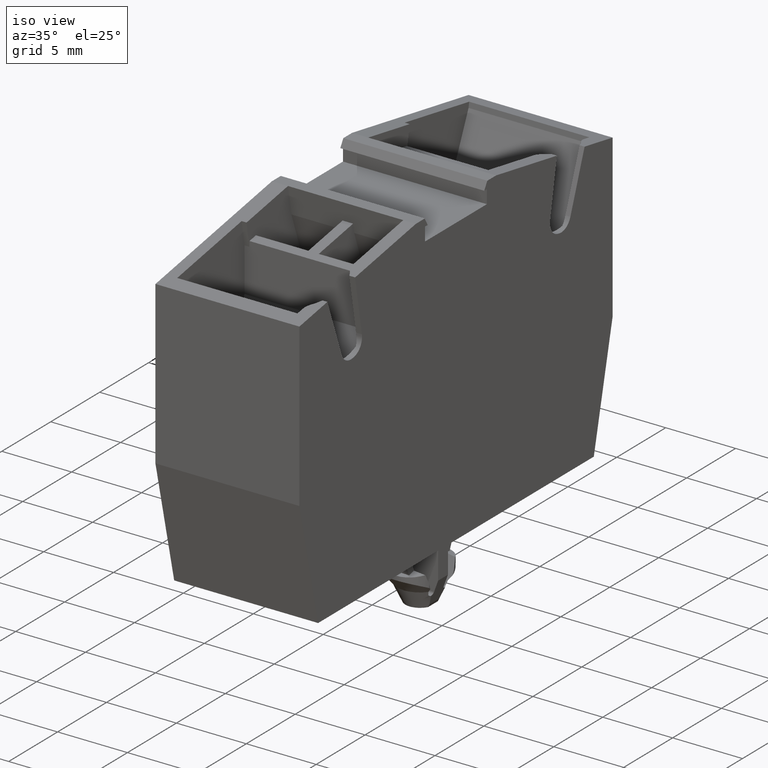
[diagram: clean part render]
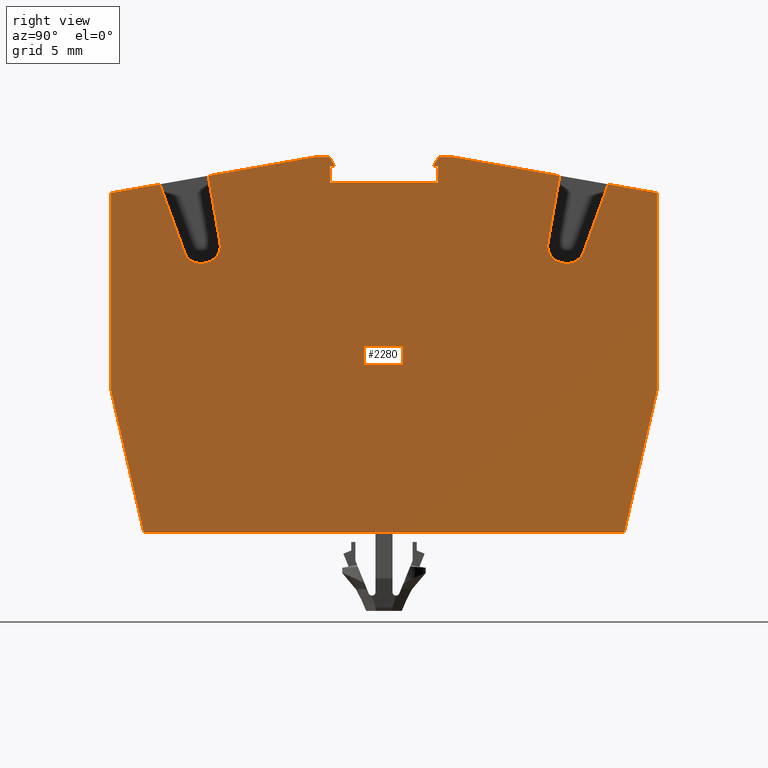
[diagram: tour spotlight — one face highlighted and labeled with its STEP entity id]
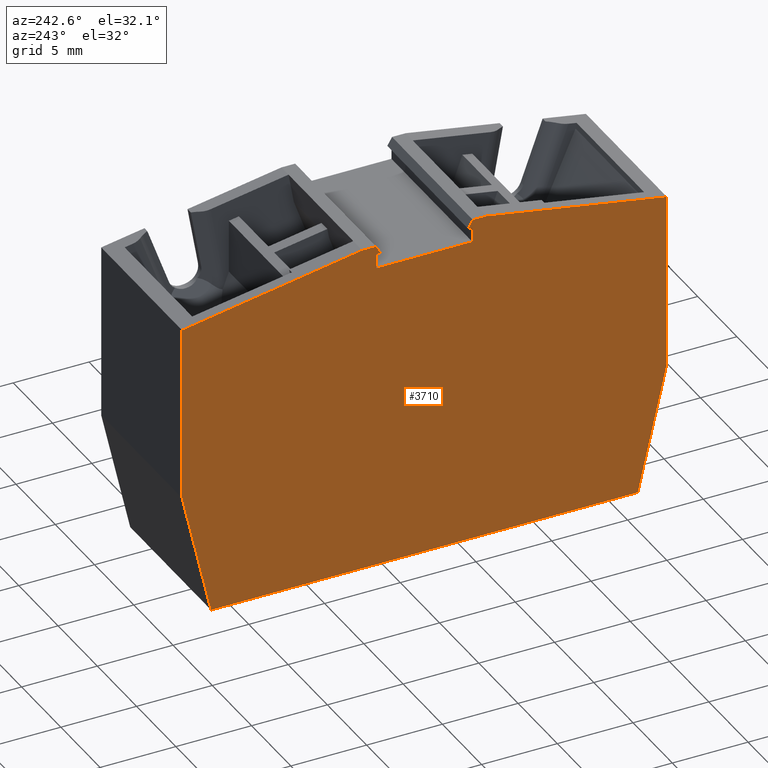
[diagram: tour spotlight — one face highlighted and labeled with its STEP entity id]
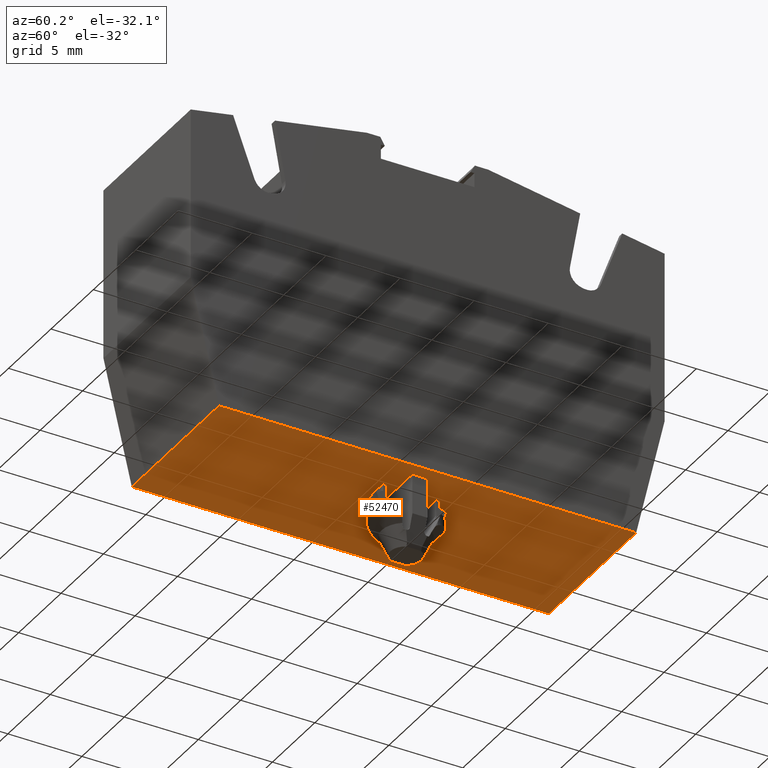
[diagram: tour spotlight — one face highlighted and labeled with its STEP entity id]
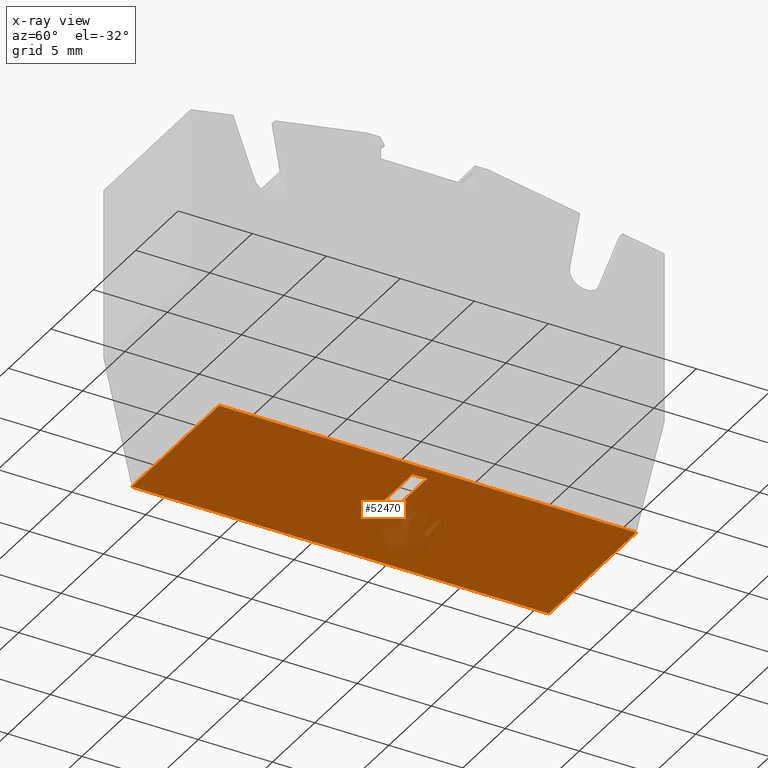
[diagram: x-ray of the same camera — body ghosted, this tour face saturated]
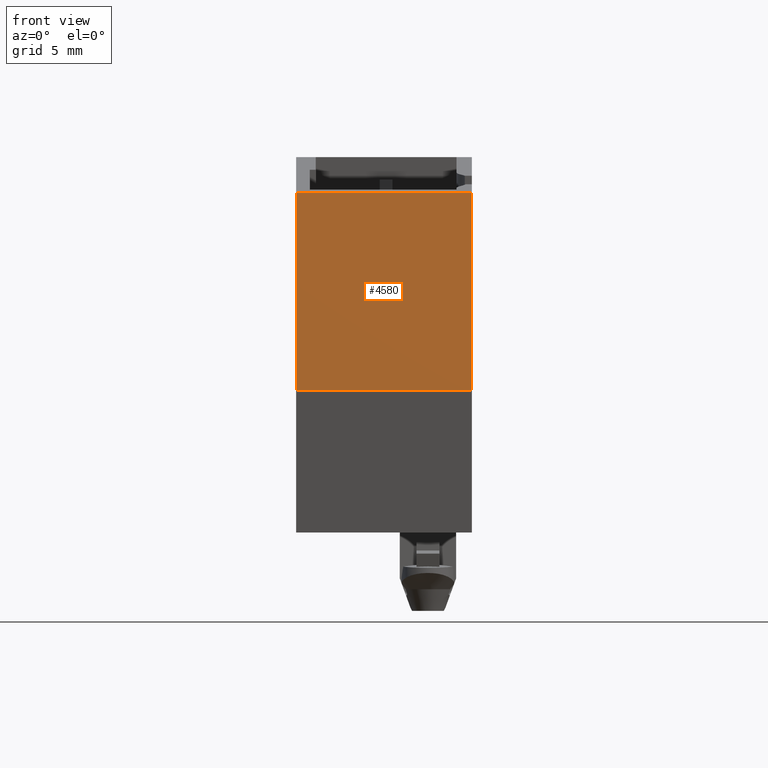
[diagram: tour spotlight — one face highlighted and labeled with its STEP entity id]
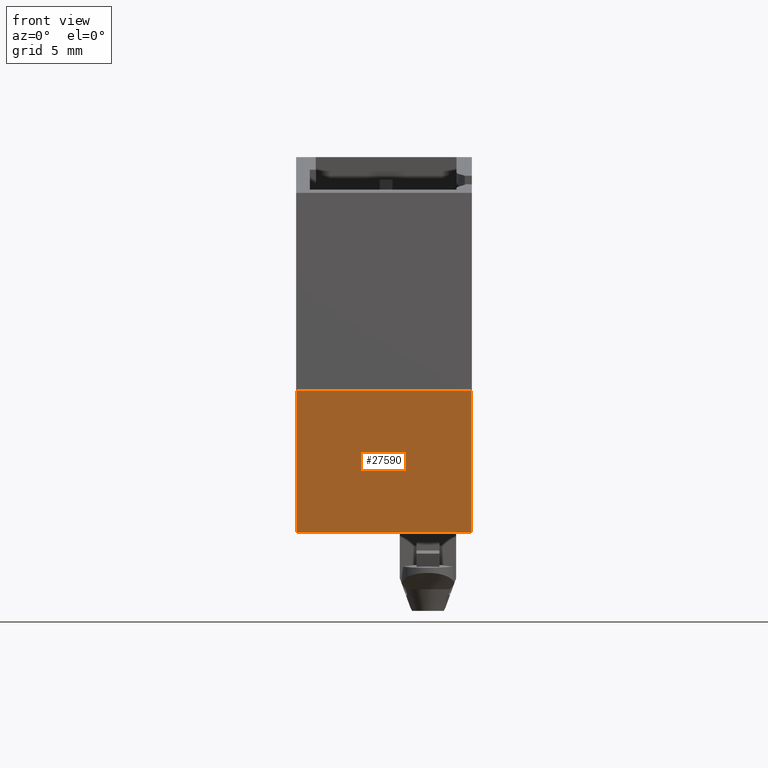
[diagram: tour spotlight — one face highlighted and labeled with its STEP entity id]
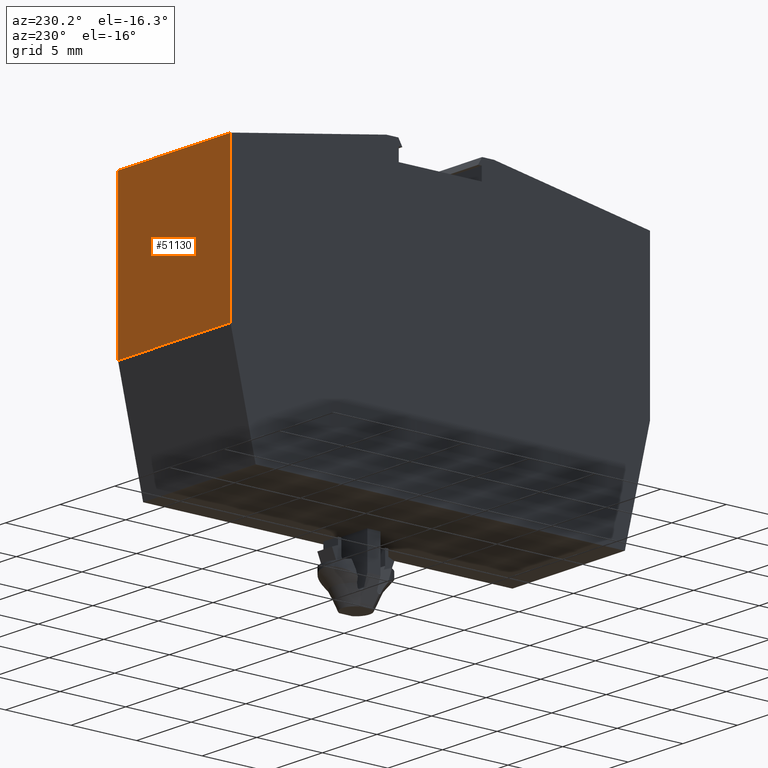
[diagram: tour spotlight — one face highlighted and labeled with its STEP entity id]
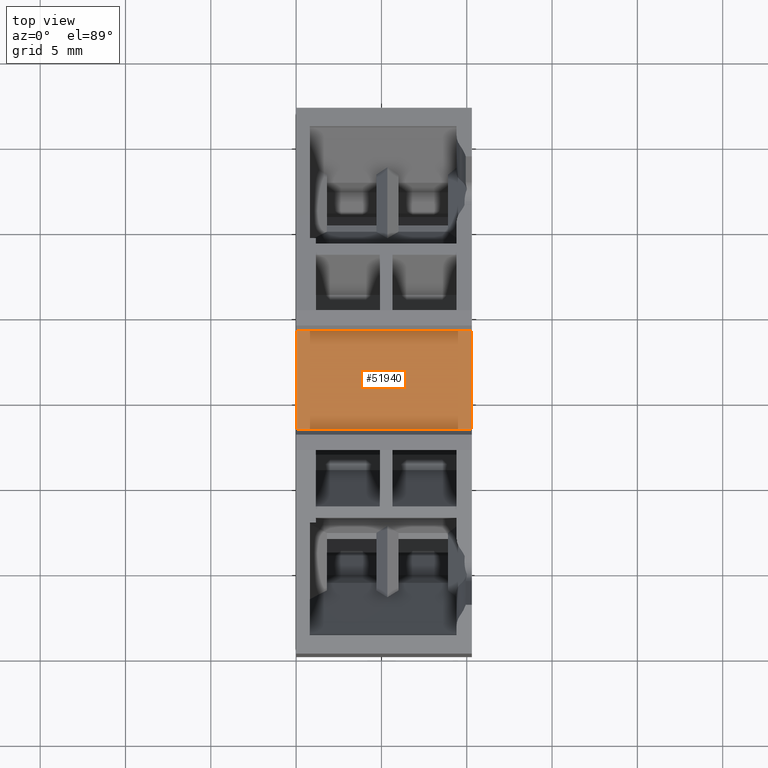
[diagram: tour spotlight — one face highlighted and labeled with its STEP entity id]
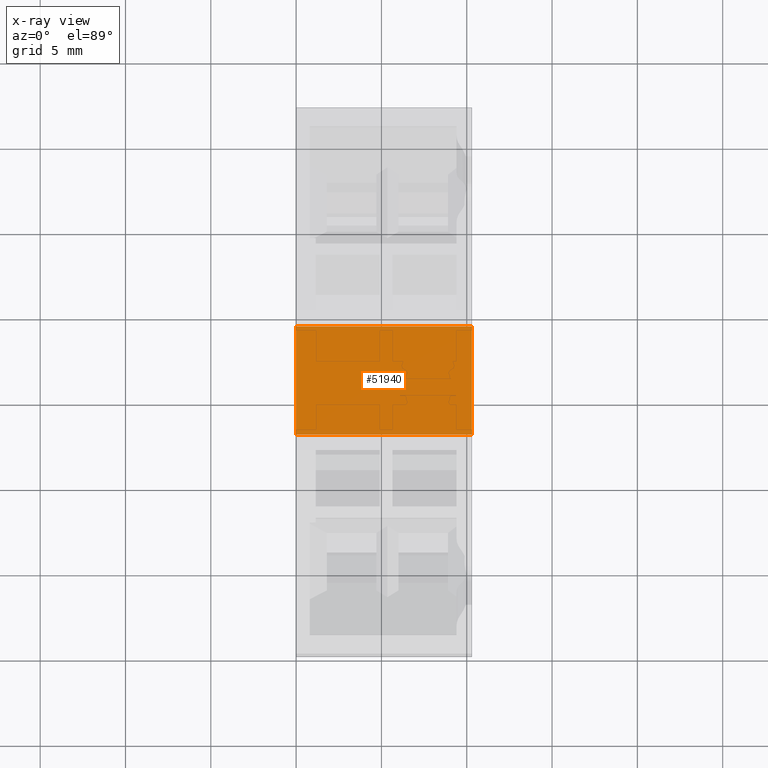
[diagram: x-ray of the same camera — body ghosted, this tour face saturated]
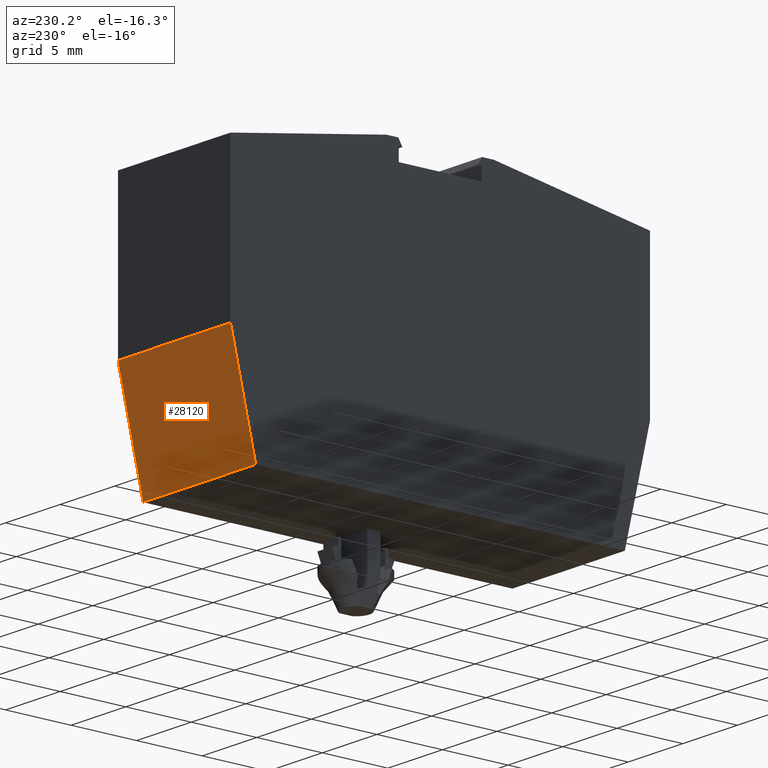
[diagram: tour spotlight — one face highlighted and labeled with its STEP entity id]
A machine part: a face-by-face anatomy tour. The part has 181 B-rep faces; the first image is the clean iso view, then the 8 largest visible faces are spotlighted one at a time (largest first), each with its STEP entity span.

Face 1 — right view, entity #2280. In plain terms, the highlighted planar face has unit normal (1, 0, 0).
Definition (entity closure, byte-faithful):
#10=CARTESIAN_POINT('',(10.2480527911617,122.760085154839,55.05));
#20=DIRECTION('',(-2.30345960980398E-64,1.26862884984352E-65,-1.));
#30=DIRECTION('',(0.258819045102521,-0.965925826289068,
-7.18719353645615E-65));
#40=AXIS2_PLACEMENT_3D('',#10,#20,#30);
#50=PLANE('',#40);
#60=CARTESIAN_POINT('',(30.7687890493707,146.615415927268,
55.0499999999999));
#70=DIRECTION('',(-0.707106781192048,-0.707106781181047,0.));
#80=VECTOR('',#70,1.);
#90=LINE('',#60,#80);
#100=CARTESIAN_POINT('',(-7.81307301441078,108.033553864087,
55.0499999999999));
#110=VERTEX_POINT('',#100);
#120=CARTESIAN_POINT('',(-8.24581620230512,107.600810676199,
55.0499999999999));
#130=VERTEX_POINT('',#120);
#140=EDGE_CURVE('',#110,#130,#90,.T.);
#150=ORIENTED_EDGE('',*,*,#140,.F.);
#160=CARTESIAN_POINT('',(-18.4441107971479,145.661364254707,
55.0499999999999));
#170=DIRECTION('',(0.258819045102521,-0.965925826289069,
-1.43743870729123E-64));
#180=VECTOR('',#170,1.);
#190=LINE('',#160,#180);
#200=CARTESIAN_POINT('',(-8.01189244908608,106.727795344088,
55.0499999999999));
#210=VERTEX_POINT('',#200);
#220=EDGE_CURVE('',#130,#210,#190,.T.);
#230=ORIENTED_EDGE('',*,*,#220,.F.);
#240=CARTESIAN_POINT('',(6.44969629117272,75.7148182090402,
55.0499999999999));
#250=DIRECTION('',(0.422618261740699,-0.90630778703665,0.));
#260=VECTOR('',#250,1.);
#270=LINE('',#240,#260);
#280=CARTESIAN_POINT('',(-5.34939740012057,101.018056285759,
55.0499999999999));
#290=VERTEX_POINT('',#280);
#300=EDGE_CURVE('',#210,#290,#270,.T.);
#310=ORIENTED_EDGE('',*,*,#300,.F.);
#320=CARTESIAN_POINT('',(30.7687890493707,117.860243225863,
55.0499999999999));
#330=DIRECTION('',(0.906307787036306,0.422618261741438,0.));
#340=VECTOR('',#330,1.);
#350=LINE('',#320,#340);
#360=CARTESIAN_POINT('',(-1.72416625197246,102.708529332726,
55.0499999999999));
#370=VERTEX_POINT('',#360);
#380=EDGE_CURVE('',#290,#370,#350,.T.);
#390=ORIENTED_EDGE('',*,*,#380,.F.);
#400=CARTESIAN_POINT('',(-1.30154799023101,101.80222154569,
55.0499999999999));
#410=DIRECTION('',(4.14455412124588E-15,-8.88802499542178E-15,1.));
#420=DIRECTION('',(-0.866025403784085,-0.500000000000613,
-8.54723341359381E-16));
#430=AXIS2_PLACEMENT_3D('',#400,#410,#420);
#440=CIRCLE('',#430,1.);
#450=CARTESIAN_POINT('',(-0.395240203169809,102.224839807378,
55.0499999999999));
#460=VERTEX_POINT('',#450);
#470=EDGE_CURVE('',#460,#370,#440,.T.);
#480=ORIENTED_EDGE('',*,*,#470,.T.);
#490=CARTESIAN_POINT('',(11.9665858860122,75.7148182090402,
55.0499999999999));
#500=DIRECTION('',(-0.422618261741341,0.906307787036351,0.));
#510=VECTOR('',#500,1.);
#520=LINE('',#490,#510);
#530=CARTESIAN_POINT('',(-0.327240769009244,102.07901455023,
55.0499999999999));
#540=VERTEX_POINT('',#530);
#550=EDGE_CURVE('',#540,#460,#520,.T.);
#560=ORIENTED_EDGE('',*,*,#550,.T.);
#570=CARTESIAN_POINT('',(-1.23354855604559,101.656396288489,
55.0499999999999));
#580=DIRECTION('',(4.14455412124588E-15,-8.88802499542178E-15,1.));
#590=DIRECTION('',(-0.866025403784085,-0.500000000000613,
-8.54723341359381E-16));
#600=AXIS2_PLACEMENT_3D('',#570,#580,#590);
#610=CIRCLE('',#600,1.);
#620=CARTESIAN_POINT('',(-0.659972119694014,100.8372442442,
55.0499999999999));
#630=VERTEX_POINT('',#620);
#640=EDGE_CURVE('',#630,#540,#610,.T.);
#650=ORIENTED_EDGE('',*,*,#640,.T.);
#660=CARTESIAN_POINT('',(30.7687890493707,122.843899731405,
55.0499999999999));
#670=DIRECTION('',(0.819152044288586,0.573576436351626,0.));
#680=VECTOR('',#670,1.);
#690=LINE('',#660,#680);
#700=CARTESIAN_POINT('',(-4.1315658662146,98.4064081332833,
55.0499999999999));
#710=VERTEX_POINT('',#700);
#720=EDGE_CURVE('',#710,#630,#690,.T.);
#730=ORIENTED_EDGE('',*,*,#720,.T.);
#740=CARTESIAN_POINT('',(-2.90515227636546,95.7763557024448,
55.0499999999999));
#750=VERTEX_POINT('',#740);
#760=EDGE_CURVE('',#710,#750,#270,.T.);
#770=ORIENTED_EDGE('',*,*,#760,.F.);
#780=CARTESIAN_POINT('',(39.0509984926515,107.018472418521,
55.0499999999999));
#790=DIRECTION('',(0.965925826289069,0.258819045102521,
-1.68675167091688E-80));
#800=VECTOR('',#790,1.);
#810=LINE('',#780,#800);
#820=CARTESIAN_POINT('',(8.3012380077943,98.7790989291533,
55.0499999999999));
#830=VERTEX_POINT('',#820);
#840=EDGE_CURVE('',#750,#830,#810,.T.);
#850=ORIENTED_EDGE('',*,*,#840,.F.);
#860=CARTESIAN_POINT('',(30.7687890493707,110.725307724295,
55.0499999999999));
#870=DIRECTION('',(-0.882947592858927,-0.469471562785891,0.));
#880=VECTOR('',#870,1.);
#890=LINE('',#860,#880);
#900=CARTESIAN_POINT('',(15.8224717623891,102.778209854199,55.05));
#910=VERTEX_POINT('',#900);
#920=EDGE_CURVE('',#910,#830,#890,.T.);
#930=ORIENTED_EDGE('',*,*,#920,.T.);
#940=CARTESIAN_POINT('',(23.0740856981567,75.7148182090402,55.05));
#950=DIRECTION('',(0.25881904510252,-0.965925826289069,
-1.55517576410032E-28));
#960=VECTOR('',#950,1.);
#970=LINE('',#940,#960);
#980=CARTESIAN_POINT('',(8.53216352631745,129.986010594057,55.05));
#990=VERTEX_POINT('',#980);
#1000=EDGE_CURVE('',#990,#910,#970,.T.);
#1010=ORIENTED_EDGE('',*,*,#1000,.T.);
#1020=CARTESIAN_POINT('',(30.7687890493707,130.762530668222,
55.0499999999999));
#1030=DIRECTION('',(0.999390827019096,0.0348994967025007,0.));
#1040=VECTOR('',#1030,1.);
#1050=LINE('',#1020,#1040);
#1060=CARTESIAN_POINT('',(0.019028564513242,129.688725370403,
55.0499999999999));
#1070=VERTEX_POINT('',#1060);
#1080=EDGE_CURVE('',#1070,#990,#1050,.T.);
#1090=ORIENTED_EDGE('',*,*,#1080,.T.);
#1100=CARTESIAN_POINT('',(30.7687890493709,137.928098859771,
55.0499999999999));
#1110=DIRECTION('',(0.965925826289068,0.258819045102521,0.));
#1120=VECTOR('',#1110,1.);
#1130=LINE('',#1100,#1120);
#1140=CARTESIAN_POINT('',(-11.1873617196461,126.685982143695,
55.0499999999999));
#1150=VERTEX_POINT('',#1140);
#1160=EDGE_CURVE('',#1150,#1070,#1130,.T.);
#1170=ORIENTED_EDGE('',*,*,#1160,.T.);
#1180=CARTESIAN_POINT('',(-6.72796270864235,75.7148182090402,
55.0499999999999));
#1190=DIRECTION('',(-0.0871557427476581,0.996194698091746,0.));
#1200=VECTOR('',#1190,1.);
#1210=LINE('',#1180,#1200);
#1220=CARTESIAN_POINT('',(-10.9344408285798,123.795083130377,
55.0499999999999));
#1230=VERTEX_POINT('',#1220);
#1240=EDGE_CURVE('',#1230,#1150,#1210,.T.);
#1250=ORIENTED_EDGE('',*,*,#1240,.T.);
#1260=CARTESIAN_POINT('',(30.7687890493707,120.146523283638,
55.0499999999999));
#1270=DIRECTION('',(0.99619469809174,-0.087155742747728,0.));
#1280=VECTOR('',#1270,1.);
#1290=LINE('',#1260,#1280);
#1300=CARTESIAN_POINT('',(-6.71253439702602,123.425714179149,
55.0499999999999));
#1310=VERTEX_POINT('',#1300);
#1320=EDGE_CURVE('',#1230,#1310,#1290,.T.);
#1330=ORIENTED_EDGE('',*,*,#1320,.F.);
#1340=CARTESIAN_POINT('',(-6.79969013977362,122.429519481057,
55.0499999999999));
#1350=DIRECTION('',(8.54723341358698E-16,-9.76953249612873E-15,-1.));
#1360=DIRECTION('',(-1.,6.99995617026161E-14,-8.54723341359381E-16));
#1370=AXIS2_PLACEMENT_3D('',#1340,#1350,#1360);
#1380=CIRCLE('',#1370,1.);
#1390=CARTESIAN_POINT('',(-5.8034954416819,122.516675223805,
55.0499999999999));
#1400=VERTEX_POINT('',#1390);
#1410=EDGE_CURVE('',#1310,#1400,#1380,.T.);
#1420=ORIENTED_EDGE('',*,*,#1410,.F.);
#1430=CARTESIAN_POINT('',(-1.70886352093207,75.7148182090402,
55.0499999999999));
#1440=DIRECTION('',(0.0871557427475887,-0.996194698091752,0.));
#1450=VECTOR('',#1440,1.);
#1460=LINE('',#1430,#1450);
#1470=CARTESIAN_POINT('',(-5.78947205053392,122.356387129521,
55.0499999999999));
#1480=VERTEX_POINT('',#1470);
#1490=EDGE_CURVE('',#1400,#1480,#1460,.T.);
#1500=ORIENTED_EDGE('',*,*,#1490,.F.);
#1510=CARTESIAN_POINT('',(-6.78566674862054,122.269231386715,
55.0499999999999));
#1520=DIRECTION('',(8.54723341358698E-16,-9.76953249612873E-15,-1.));
#1530=DIRECTION('',(-1.,6.99995617026161E-14,-8.54723341359381E-16));
#1540=AXIS2_PLACEMENT_3D('',#1510,#1520,#1530);
#1550=CIRCLE('',#1540,1.);
#1560=CARTESIAN_POINT('',(-6.69851100587303,121.273036688623,
55.0499999999999));
#1570=VERTEX_POINT('',#1560);
#1580=EDGE_CURVE('',#1480,#1570,#1550,.T.);
#1590=ORIENTED_EDGE('',*,*,#1580,.F.);
#1600=CARTESIAN_POINT('',(30.7687890493707,124.551000696374,
55.0499999999999));
#1610=DIRECTION('',(0.996194698091761,0.0871557427474814,0.));
#1620=VECTOR('',#1610,1.);
#1630=LINE('',#1600,#1620);
#1640=CARTESIAN_POINT('',(-10.6832897982345,120.924413717633,
55.0499999999999));
#1650=VERTEX_POINT('',#1640);
#1660=EDGE_CURVE('',#1650,#1570,#1630,.T.);
#1670=ORIENTED_EDGE('',*,*,#1660,.T.);
#1680=CARTESIAN_POINT('',(-10.1342086189269,114.648387119659,
55.0499999999999));
#1690=VERTEX_POINT('',#1680);
#1700=EDGE_CURVE('',#1690,#1650,#1210,.T.);
#1710=ORIENTED_EDGE('',*,*,#1700,.T.);
#1720=CARTESIAN_POINT('',(0.298009729134932,75.7148182090403,
55.0499999999999));
#1730=DIRECTION('',(-0.258819045102521,0.965925826289068,0.));
#1740=VECTOR('',#1730,1.);
#1750=LINE('',#1720,#1740);
#1760=CARTESIAN_POINT('',(-9.90028486570793,113.775371787549,
55.0499999999999));
#1770=VERTEX_POINT('',#1760);
#1780=EDGE_CURVE('',#1770,#1690,#1750,.T.);
#1790=ORIENTED_EDGE('',*,*,#1780,.T.);
#1800=CARTESIAN_POINT('',(30.7687890493707,102.878126275403,
55.0499999999999));
#1810=DIRECTION('',(0.965925826290972,-0.258819045095416,0.));
#1820=VECTOR('',#1810,1.);
#1830=LINE('',#1800,#1820);
#1840=CARTESIAN_POINT('',(-9.3091466777316,113.61697678747,
55.0499999999999));
#1850=VERTEX_POINT('',#1840);
#1860=EDGE_CURVE('',#1770,#1850,#1830,.T.);
#1870=ORIENTED_EDGE('',*,*,#1860,.F.);
#1880=CARTESIAN_POINT('',(0.846706104789074,75.7148182090402,
55.0499999999999));
#1890=DIRECTION('',(-0.25881904510333,0.965925826288851,0.));
#1900=VECTOR('',#1890,1.);
#1910=LINE('',#1880,#1900);
#1920=CARTESIAN_POINT('',(-9.3796250762075,113.880005751417,
55.0499999999999));
#1930=VERTEX_POINT('',#1920);
#1940=EDGE_CURVE('',#1850,#1930,#1910,.T.);
#1950=ORIENTED_EDGE('',*,*,#1940,.F.);
#1960=CARTESIAN_POINT('',(30.7687890493708,124.637740893771,
55.0499999999999));
#1970=DIRECTION('',(0.965925826288979,0.258819045102853,0.));
#1980=VECTOR('',#1970,1.);
#1990=LINE('',#1960,#1980);
#2000=CARTESIAN_POINT('',(-8.442677024708,114.131060225167,
55.0499999999999));
#2010=VERTEX_POINT('',#2000);
#2020=EDGE_CURVE('',#1930,#2010,#1990,.T.);
#2030=ORIENTED_EDGE('',*,*,#2020,.F.);
#2040=CARTESIAN_POINT('',(1.85092399976497,75.7148182090403,
55.0499999999999));
#2050=DIRECTION('',(0.258819045102829,-0.965925826288986,0.));
#2060=VECTOR('',#2050,1.);
#2070=LINE('',#2040,#2060);
#2080=CARTESIAN_POINT('',(-6.80564656443249,108.021579373889,
55.0499999999999));
#2090=VERTEX_POINT('',#2080);
#2100=EDGE_CURVE('',#2010,#2090,#2070,.T.);
#2110=ORIENTED_EDGE('',*,*,#2100,.F.);
#2120=CARTESIAN_POINT('',(30.7687890493708,118.089619052631,
55.0499999999999));
#2130=DIRECTION('',(-0.965925826289267,-0.25881904510178,0.));
#2140=VECTOR('',#2130,1.);
#2150=LINE('',#2120,#2140);
#2160=CARTESIAN_POINT('',(-7.74259461593545,107.770524900139,
55.0499999999999));
#2170=VERTEX_POINT('',#2160);
#2180=EDGE_CURVE('',#2090,#2170,#2150,.T.);
#2190=ORIENTED_EDGE('',*,*,#2180,.F.);
#2200=CARTESIAN_POINT('',(0.846706104710155,75.7148182090402,
55.0499999999999));
#2210=DIRECTION('',(-0.258819045101303,0.965925826289395,0.));
#2220=VECTOR('',#2210,1.);
#2230=LINE('',#2200,#2220);
#2240=EDGE_CURVE('',#2170,#110,#2230,.T.);
#2250=ORIENTED_EDGE('',*,*,#2240,.F.);
#2260=EDGE_LOOP('',(#2250,#2190,#2110,#2030,#1950,#1870,#1790,#1710,
#1670,#1590,#1500,#1420,#1330,#1250,#1170,#1090,#1010,#930,#850,#770,
#730,#650,#560,#480,#390,#310,#230,#150));
#2270=FACE_OUTER_BOUND('',#2260,.T.);
#2280=ADVANCED_FACE('',(#2270),#50,.T.);

Face 2 — auxiliary view, entity #3710. In plain terms, the highlighted planar face has unit normal (1, 0, 0).
Definition (entity closure, byte-faithful):
#2360=CARTESIAN_POINT('',(10.2480527911617,122.760085154839,65.35));
#2370=DIRECTION('',(-2.30345960980398E-64,1.26862884984352E-65,-1.));
#2380=DIRECTION('',(0.258819045102521,-0.965925826289068,
-7.18719353645615E-65));
#2390=AXIS2_PLACEMENT_3D('',#2360,#2370,#2380);
#2400=PLANE('',#2390);
#2410=CARTESIAN_POINT('',(0.846706104710389,75.7148182090402,
65.3499999999999));
#2420=DIRECTION('',(-0.258819045101303,0.965925826289395,0.));
#2430=VECTOR('',#2420,1.);
#2440=LINE('',#2410,#2430);
#2450=CARTESIAN_POINT('',(-7.74259461593523,107.770524900139,
65.3499999999999));
#2460=VERTEX_POINT('',#2450);
#2470=CARTESIAN_POINT('',(-7.81307301441058,108.033553864087,
65.3499999999999));
#2480=VERTEX_POINT('',#2470);
#2490=EDGE_CURVE('',#2460,#2480,#2440,.T.);
#2500=ORIENTED_EDGE('',*,*,#2490,.T.);
#2510=CARTESIAN_POINT('',(30.7687890493708,118.089619052631,
65.3499999999999));
#2520=DIRECTION('',(-0.965925826289267,-0.25881904510178,0.));
#2530=VECTOR('',#2520,1.);
#2540=LINE('',#2510,#2530);
#2550=CARTESIAN_POINT('',(-6.80564656443227,108.021579373889,
65.3499999999999));
#2560=VERTEX_POINT('',#2550);
#2570=EDGE_CURVE('',#2560,#2460,#2540,.T.);
#2580=ORIENTED_EDGE('',*,*,#2570,.T.);
#2590=CARTESIAN_POINT('',(1.85092399976497,75.7148182090403,
65.3499999999999));
#2600=DIRECTION('',(0.258819045102829,-0.965925826288986,0.));
#2610=VECTOR('',#2600,1.);
#2620=LINE('',#2590,#2610);
#2630=CARTESIAN_POINT('',(-8.44267702470775,114.131060225167,
65.3499999999999));
#2640=VERTEX_POINT('',#2630);
#2650=EDGE_CURVE('',#2640,#2560,#2620,.T.);
#2660=ORIENTED_EDGE('',*,*,#2650,.T.);
#2670=CARTESIAN_POINT('',(30.7687890493708,124.637740893771,
65.3499999999999));
#2680=DIRECTION('',(0.965925826288979,0.258819045102853,0.));
#2690=VECTOR('',#2680,1.);
#2700=LINE('',#2670,#2690);
#2710=CARTESIAN_POINT('',(-9.37962507620726,113.880005751417,
65.3499999999999));
#2720=VERTEX_POINT('',#2710);
#2730=EDGE_CURVE('',#2720,#2640,#2700,.T.);
#2740=ORIENTED_EDGE('',*,*,#2730,.T.);
#2750=CARTESIAN_POINT('',(0.846706104789313,75.7148182090402,
65.3499999999999));
#2760=DIRECTION('',(-0.25881904510333,0.965925826288851,0.));
#2770=VECTOR('',#2760,1.);
#2780=LINE('',#2750,#2770);
#2790=CARTESIAN_POINT('',(-9.30914667773136,113.61697678747,
65.3499999999999));
#2800=VERTEX_POINT('',#2790);
#2810=EDGE_CURVE('',#2800,#2720,#2780,.T.);
#2820=ORIENTED_EDGE('',*,*,#2810,.T.);
#2830=CARTESIAN_POINT('',(30.7687890493707,102.878126275403,
65.3499999999999));
#2840=DIRECTION('',(0.965925826290972,-0.258819045095416,0.));
#2850=VECTOR('',#2840,1.);
#2860=LINE('',#2830,#2850);
#2870=CARTESIAN_POINT('',(-9.90028486570795,113.775371787549,
65.3499999999999));
#2880=VERTEX_POINT('',#2870);
#2890=EDGE_CURVE('',#2880,#2800,#2860,.T.);
#2900=ORIENTED_EDGE('',*,*,#2890,.T.);
#2910=CARTESIAN_POINT('',(-6.98308795074743,102.888244685233,
65.3499999999999));
#2920=DIRECTION('',(-0.258819045102521,0.965925826289068,
5.05263796480701E-31));
#2930=VECTOR('',#2920,1.);
#2940=LINE('',#2910,#2930);
#2950=CARTESIAN_POINT('',(-10.1342086189269,114.648387119659,
65.3499999999999));
#2960=VERTEX_POINT('',#2950);
#2970=EDGE_CURVE('',#2880,#2960,#2940,.T.);
#2980=ORIENTED_EDGE('',*,*,#2970,.F.);
#2990=CARTESIAN_POINT('',(-6.72796270864225,75.7148182090403,
65.3499999999999));
#3000=DIRECTION('',(0.0871557427476582,-0.996194698091746,0.));
#3010=VECTOR('',#3000,1.);
#3020=LINE('',#2990,#3010);
#3030=CARTESIAN_POINT('',(-11.1873617196461,126.685982143695,
65.3499999999999));
#3040=VERTEX_POINT('',#3030);
#3050=EDGE_CURVE('',#3040,#2960,#3020,.T.);
#3060=ORIENTED_EDGE('',*,*,#3050,.T.);
#3070=CARTESIAN_POINT('',(30.7687890493708,137.928098859771,
65.3499999999999));
#3080=DIRECTION('',(-0.965925826289068,-0.258819045102521,0.));
#3090=VECTOR('',#3080,1.);
#3100=LINE('',#3070,#3090);
#3110=CARTESIAN_POINT('',(0.0190285645133166,129.688725370403,
65.3499999999999));
#3120=VERTEX_POINT('',#3110);
#3130=EDGE_CURVE('',#3120,#3040,#3100,.T.);
#3140=ORIENTED_EDGE('',*,*,#3130,.T.);
#3150=CARTESIAN_POINT('',(30.7687890493707,130.762530668222,
65.3499999999999));
#3160=DIRECTION('',(-0.999390827019096,-0.0348994967025007,0.));
#3170=VECTOR('',#3160,1.);
#3180=LINE('',#3150,#3170);
#3190=CARTESIAN_POINT('',(8.53216352631745,129.986010594057,
65.3499999999999));
#3200=VERTEX_POINT('',#3190);
#3210=EDGE_CURVE('',#3200,#3120,#3180,.T.);
#3220=ORIENTED_EDGE('',*,*,#3210,.T.);
#3230=CARTESIAN_POINT('',(43.3618100923382,1.4210854715202E-14,
65.3499999999999));
#3240=DIRECTION('',(0.25881904510252,-0.965925826289069,0.));
#3250=VECTOR('',#3240,1.);
#3260=LINE('',#3230,#3250);
#3270=CARTESIAN_POINT('',(15.8224717623891,102.778209854199,
65.3499999999999));
#3280=VERTEX_POINT('',#3270);
#3290=EDGE_CURVE('',#3200,#3280,#3260,.T.);
#3300=ORIENTED_EDGE('',*,*,#3290,.F.);
#3310=CARTESIAN_POINT('',(30.7687890493707,110.725307724295,
65.3499999999999));
#3320=DIRECTION('',(-0.882947592858927,-0.469471562785891,0.));
#3330=VECTOR('',#3320,1.);
#3340=LINE('',#3310,#3330);
#3350=CARTESIAN_POINT('',(8.30123800779428,98.7790989291533,
65.3499999999999));
#3360=VERTEX_POINT('',#3350);
#3370=EDGE_CURVE('',#3280,#3360,#3340,.T.);
#3380=ORIENTED_EDGE('',*,*,#3370,.F.);
#3390=CARTESIAN_POINT('',(39.0509984926515,107.018472418521,
65.3499999999999));
#3400=DIRECTION('',(-0.965925826289069,-0.258819045102521,
1.68675167091688E-80));
#3410=VECTOR('',#3400,1.);
#3420=LINE('',#3390,#3410);
#3430=CARTESIAN_POINT('',(-2.90515227636546,95.7763557024448,
65.3499999999999));
#3440=VERTEX_POINT('',#3430);
#3450=EDGE_CURVE('',#3360,#3440,#3420,.T.);
#3460=ORIENTED_EDGE('',*,*,#3450,.F.);
#3470=CARTESIAN_POINT('',(-24.5287814145522,142.148378035819,
65.3499999999999));
#3480=DIRECTION('',(-0.422618261740699,0.90630778703665,
1.41560078342025E-64));
#3490=VECTOR('',#3480,1.);
#3500=LINE('',#3470,#3490);
#3510=CARTESIAN_POINT('',(-8.0118924490861,106.727795344088,
65.3499999999999));
#3520=VERTEX_POINT('',#3510);
#3530=EDGE_CURVE('',#3440,#3520,#3500,.T.);
#3540=ORIENTED_EDGE('',*,*,#3530,.F.);
#3550=CARTESIAN_POINT('',(-11.1630131172655,118.487937778514,
65.3499999999999));
#3560=DIRECTION('',(0.258819045102521,-0.965925826289069,
5.05263796480701E-31));
#3570=VECTOR('',#3560,1.);
#3580=LINE('',#3550,#3570);
#3590=CARTESIAN_POINT('',(-8.24581620230512,107.600810676199,
65.3499999999999));
#3600=VERTEX_POINT('',#3590);
#3610=EDGE_CURVE('',#3600,#3520,#3580,.T.);
#3620=ORIENTED_EDGE('',*,*,#3610,.T.);
#3630=CARTESIAN_POINT('',(30.7687890493707,146.615415927268,
65.3499999999999));
#3640=DIRECTION('',(-0.707106781192048,-0.707106781181047,0.));
#3650=VECTOR('',#3640,1.);
#3660=LINE('',#3630,#3650);
#3670=EDGE_CURVE('',#2480,#3600,#3660,.T.);
#3680=ORIENTED_EDGE('',*,*,#3670,.T.);
#3690=EDGE_LOOP('',(#3680,#3620,#3540,#3460,#3380,#3300,#3220,#3140,
#3060,#2980,#2900,#2820,#2740,#2660,#2580,#2500));
#3700=FACE_OUTER_BOUND('',#3690,.T.);
#3710=ADVANCED_FACE('',(#3700),#2400,.F.);

Face 3 — auxiliary view, entity #52470. An x-ray twin of the same camera follows (body ghosted, this face saturated) — the face is partly hidden behind the body. In plain terms, the highlighted planar face has unit normal (0, 0, -1).
Definition (entity closure, byte-faithful):
#900=CARTESIAN_POINT('',(15.8224717623891,102.778209854199,55.05));
#910=VERTEX_POINT('',#900);
#940=CARTESIAN_POINT('',(23.0740856981567,75.7148182090402,55.05));
#950=DIRECTION('',(0.25881904510252,-0.965925826289069,
-1.55517576410032E-28));
#960=VECTOR('',#950,1.);
#970=LINE('',#940,#960);
#980=CARTESIAN_POINT('',(8.53216352631745,129.986010594057,55.05));
#990=VERTEX_POINT('',#980);
#1000=EDGE_CURVE('',#990,#910,#970,.T.);
#3190=CARTESIAN_POINT('',(8.53216352631745,129.986010594057,
65.3499999999999));
#3200=VERTEX_POINT('',#3190);
#3230=CARTESIAN_POINT('',(43.3618100923382,1.4210854715202E-14,
65.3499999999999));
#3240=DIRECTION('',(0.25881904510252,-0.965925826289069,0.));
#3250=VECTOR('',#3240,1.);
#3260=LINE('',#3230,#3250);
#3270=CARTESIAN_POINT('',(15.8224717623891,102.778209854199,
65.3499999999999));
#3280=VERTEX_POINT('',#3270);
#3290=EDGE_CURVE('',#3200,#3280,#3260,.T.);
#27480=CARTESIAN_POINT('',(8.53216352631745,129.986010594057,
5.14999999999992));
#27490=DIRECTION('',(-1.09967532873231E-28,-1.90469354119436E-28,1.));
#27500=VECTOR('',#27490,1.);
#27510=LINE('',#27480,#27500);
#27520=EDGE_CURVE('',#990,#3200,#27510,.T.);
#27960=CARTESIAN_POINT('',(15.8224717623891,102.778209854199,
5.14999999999992));
#27970=DIRECTION('',(-1.09967532873231E-28,-1.90469354119436E-28,1.));
#27980=VECTOR('',#27970,1.);
#27990=LINE('',#27960,#27980);
#28000=EDGE_CURVE('',#910,#3280,#27990,.T.);
#52020=CARTESIAN_POINT('',(6.66145883744991,136.967575538868,
55.0499999999999));
#52030=DIRECTION('',(0.965925826289069,0.25881904510252,
-2.1921365961728E-64));
#52040=DIRECTION('',(-0.25881904510252,0.965925826289069,
7.18719353645614E-65));
#52050=AXIS2_PLACEMENT_3D('',#52020,#52030,#52040);
#52060=PLANE('',#52050);
#52070=ORIENTED_EDGE('',*,*,#1000,.F.);
#52080=ORIENTED_EDGE('',*,*,#28000,.F.);
#52090=ORIENTED_EDGE('',*,*,#3290,.T.);
#52100=ORIENTED_EDGE('',*,*,#27520,.T.);
#52110=EDGE_LOOP('',(#52100,#52090,#52080,#52070));
#52120=FACE_OUTER_BOUND('',#52110,.T.);
#52130=CARTESIAN_POINT('',(12.3067271669042,115.899147310985,
5.14999999999993));
#52140=DIRECTION('',(1.07653681186988E-15,-4.01769007811664E-15,-1.));
#52150=VECTOR('',#52140,1.);
#52160=LINE('',#52130,#52150);
#52170=CARTESIAN_POINT('',(12.3067271669041,115.899147310985,
59.2749999999999));
#52180=VERTEX_POINT('',#52170);
#52190=CARTESIAN_POINT('',(12.3067271669041,115.899147310985,
55.9749999999999));
#52200=VERTEX_POINT('',#52190);
#52210=EDGE_CURVE('',#52180,#52200,#52160,.T.);
#52220=ORIENTED_EDGE('',*,*,#52210,.F.);
#52230=CARTESIAN_POINT('',(43.3618100923382,-2.8421709430404E-14,
55.9750000000004));
#52240=DIRECTION('',(-0.25881904510252,0.965925826289069,
-4.03843625207401E-15));
#52250=VECTOR('',#52240,1.);
#52260=LINE('',#52230,#52250);
#52270=CARTESIAN_POINT('',(12.0479081218016,116.865073137274,
55.9749999999999));
#52280=VERTEX_POINT('',#52270);
#52290=EDGE_CURVE('',#52200,#52280,#52260,.T.);
#52300=ORIENTED_EDGE('',*,*,#52290,.F.);
#52310=CARTESIAN_POINT('',(12.0479081218017,116.865073137274,
5.14999999999993));
#52320=DIRECTION('',(-1.04484062035557E-15,3.89939828097877E-15,1.));
#52330=VECTOR('',#52320,1.);
#52340=LINE('',#52310,#52330);
#52350=CARTESIAN_POINT('',(12.0479081218016,116.865073137274,
59.2749999999999));
#52360=VERTEX_POINT('',#52350);
#52370=EDGE_CURVE('',#52280,#52360,#52340,.T.);
#52380=ORIENTED_EDGE('',*,*,#52370,.F.);
#52390=CARTESIAN_POINT('',(43.3618100923382,-2.8421709430404E-14,
59.2750000000004));
#52400=DIRECTION('',(0.25881904510252,-0.965925826289069,
4.03843625207401E-15));
#52410=VECTOR('',#52400,1.);
#52420=LINE('',#52390,#52410);
#52430=EDGE_CURVE('',#52360,#52180,#52420,.T.);
#52440=ORIENTED_EDGE('',*,*,#52430,.F.);
#52450=EDGE_LOOP('',(#52440,#52380,#52300,#52220));
#52460=FACE_BOUND('',#52450,.T.);
#52470=ADVANCED_FACE('',(#52120,#52460),#52060,.T.);

Face 4 — front view, entity #4580. In plain terms, the highlighted planar face has unit normal (0, -1, -0).
Definition (entity closure, byte-faithful):
#1060=CARTESIAN_POINT('',(0.019028564513242,129.688725370403,
55.0499999999999));
#1070=VERTEX_POINT('',#1060);
#1100=CARTESIAN_POINT('',(30.7687890493709,137.928098859771,
55.0499999999999));
#1110=DIRECTION('',(0.965925826289068,0.258819045102521,0.));
#1120=VECTOR('',#1110,1.);
#1130=LINE('',#1100,#1120);
#1140=CARTESIAN_POINT('',(-11.1873617196461,126.685982143695,
55.0499999999999));
#1150=VERTEX_POINT('',#1140);
#1160=EDGE_CURVE('',#1150,#1070,#1130,.T.);
#3030=CARTESIAN_POINT('',(-11.1873617196461,126.685982143695,
65.3499999999999));
#3040=VERTEX_POINT('',#3030);
#3070=CARTESIAN_POINT('',(30.7687890493708,137.928098859771,
65.3499999999999));
#3080=DIRECTION('',(-0.965925826289068,-0.258819045102521,0.));
#3090=VECTOR('',#3080,1.);
#3100=LINE('',#3070,#3090);
#3110=CARTESIAN_POINT('',(0.0190285645133166,129.688725370403,
65.3499999999999));
#3120=VERTEX_POINT('',#3110);
#3130=EDGE_CURVE('',#3120,#3040,#3100,.T.);
#4370=CARTESIAN_POINT('',(-1.41408189679235,129.304724579632,
65.8650023999999));
#4380=DIRECTION('',(-0.258819045102521,0.965925826289068,
7.18719353645616E-65));
#4390=DIRECTION('',(-0.965925826289068,-0.258819045102521,
2.1921365961728E-64));
#4400=AXIS2_PLACEMENT_3D('',#4370,#4380,#4390);
#4410=PLANE('',#4400);
#4420=CARTESIAN_POINT('',(-11.187361719646,126.685982143695,
6.34999999999992));
#4430=DIRECTION('',(2.30345960980398E-64,-1.26862884984352E-65,1.));
#4440=VECTOR('',#4430,1.);
#4450=LINE('',#4420,#4440);
#4460=EDGE_CURVE('',#1150,#3040,#4450,.T.);
#4470=ORIENTED_EDGE('',*,*,#4460,.T.);
#4480=ORIENTED_EDGE('',*,*,#1160,.F.);
#4490=CARTESIAN_POINT('',(0.0190285645134338,129.688725370403,
6.34999999999993));
#4500=DIRECTION('',(-1.5674584402899E-64,-2.61993087407229E-64,1.));
#4510=VECTOR('',#4500,1.);
#4520=LINE('',#4490,#4510);
#4530=EDGE_CURVE('',#1070,#3120,#4520,.T.);
#4540=ORIENTED_EDGE('',*,*,#4530,.F.);
#4550=ORIENTED_EDGE('',*,*,#3130,.F.);
#4560=EDGE_LOOP('',(#4550,#4540,#4480,#4470));
#4570=FACE_OUTER_BOUND('',#4560,.T.);
#4580=ADVANCED_FACE('',(#4570),#4410,.T.);

Face 5 — front view, entity #27590. In plain terms, the highlighted planar face has unit normal (-0, 0.9744, 0.225).
Definition (entity closure, byte-faithful):
#980=CARTESIAN_POINT('',(8.53216352631745,129.986010594057,55.05));
#990=VERTEX_POINT('',#980);
#1020=CARTESIAN_POINT('',(30.7687890493707,130.762530668222,
55.0499999999999));
#1030=DIRECTION('',(0.999390827019096,0.0348994967025007,0.));
#1040=VECTOR('',#1030,1.);
#1050=LINE('',#1020,#1040);
#1060=CARTESIAN_POINT('',(0.019028564513242,129.688725370403,
55.0499999999999));
#1070=VERTEX_POINT('',#1060);
#1080=EDGE_CURVE('',#1070,#990,#1050,.T.);
#3110=CARTESIAN_POINT('',(0.0190285645133166,129.688725370403,
65.3499999999999));
#3120=VERTEX_POINT('',#3110);
#3150=CARTESIAN_POINT('',(30.7687890493707,130.762530668222,
65.3499999999999));
#3160=DIRECTION('',(-0.999390827019096,-0.0348994967025007,0.));
#3170=VECTOR('',#3160,1.);
#3180=LINE('',#3150,#3170);
#3190=CARTESIAN_POINT('',(8.53216352631745,129.986010594057,
65.3499999999999));
#3200=VERTEX_POINT('',#3190);
#3210=EDGE_CURVE('',#3200,#3120,#3180,.T.);
#4490=CARTESIAN_POINT('',(0.0190285645134338,129.688725370403,
6.34999999999993));
#4500=DIRECTION('',(-1.5674584402899E-64,-2.61993087407229E-64,1.));
#4510=VECTOR('',#4500,1.);
#4520=LINE('',#4490,#4510);
#4530=EDGE_CURVE('',#1070,#3120,#4520,.T.);
#27430=CARTESIAN_POINT('',(8.53216352631754,129.986010594057,
60.1999999999999));
#27440=DIRECTION('',(0.0348994967025007,-0.999390827019096,
-2.56363137230376E-64));
#27450=DIRECTION('',(0.999390827019096,0.0348994967025007,
1.65793785585985E-64));
#27460=AXIS2_PLACEMENT_3D('',#27430,#27440,#27450);
#27470=PLANE('',#27460);
#27480=CARTESIAN_POINT('',(8.53216352631745,129.986010594057,
5.14999999999992));
#27490=DIRECTION('',(-1.09967532873231E-28,-1.90469354119436E-28,1.));
#27500=VECTOR('',#27490,1.);
#27510=LINE('',#27480,#27500);
#27520=EDGE_CURVE('',#990,#3200,#27510,.T.);
#27530=ORIENTED_EDGE('',*,*,#27520,.F.);
#27540=ORIENTED_EDGE('',*,*,#3210,.F.);
#27550=ORIENTED_EDGE('',*,*,#4530,.T.);
#27560=ORIENTED_EDGE('',*,*,#1080,.F.);
#27570=EDGE_LOOP('',(#27560,#27550,#27540,#27530));
#27580=FACE_OUTER_BOUND('',#27570,.T.);
#27590=ADVANCED_FACE('',(#27580),#27470,.F.);

Face 6 — auxiliary view, entity #51130. In plain terms, the highlighted planar face has unit normal (0, -1, -0).
Definition (entity closure, byte-faithful):
#740=CARTESIAN_POINT('',(-2.90515227636546,95.7763557024448,
55.0499999999999));
#750=VERTEX_POINT('',#740);
#780=CARTESIAN_POINT('',(39.0509984926515,107.018472418521,
55.0499999999999));
#790=DIRECTION('',(0.965925826289069,0.258819045102521,
-1.68675167091688E-80));
#800=VECTOR('',#790,1.);
#810=LINE('',#780,#800);
#820=CARTESIAN_POINT('',(8.3012380077943,98.7790989291533,
55.0499999999999));
#830=VERTEX_POINT('',#820);
#840=EDGE_CURVE('',#750,#830,#810,.T.);
#3350=CARTESIAN_POINT('',(8.30123800779428,98.7790989291533,
65.3499999999999));
#3360=VERTEX_POINT('',#3350);
#3390=CARTESIAN_POINT('',(39.0509984926515,107.018472418521,
65.3499999999999));
#3400=DIRECTION('',(-0.965925826289069,-0.258819045102521,
1.68675167091688E-80));
#3410=VECTOR('',#3400,1.);
#3420=LINE('',#3390,#3410);
#3430=CARTESIAN_POINT('',(-2.90515227636546,95.7763557024448,
65.3499999999999));
#3440=VERTEX_POINT('',#3430);
#3450=EDGE_CURVE('',#3360,#3440,#3420,.T.);
#28030=CARTESIAN_POINT('',(8.30123800779406,98.7790989291532,
6.34999999999993));
#28040=DIRECTION('',(2.29538775208901E-64,-9.67383018806514E-66,-1.));
#28050=VECTOR('',#28040,1.);
#28060=LINE('',#28030,#28050);
#28070=EDGE_CURVE('',#3360,#830,#28060,.T.);
#28260=CARTESIAN_POINT('',(-2.90515227636543,95.7763557024448,
6.34999999999992));
#28270=DIRECTION('',(-2.30345960980398E-64,1.26862884984352E-65,-1.));
#28280=VECTOR('',#28270,1.);
#28290=LINE('',#28260,#28280);
#28300=EDGE_CURVE('',#3440,#750,#28290,.T.);
#51020=CARTESIAN_POINT('',(6.86812754648826,98.3950981383818,
65.8650023999999));
#51030=DIRECTION('',(-0.258819045102521,0.965925826289068,
7.18719353645616E-65));
#51040=DIRECTION('',(-0.965925826289069,-0.258819045102521,
2.1921365961728E-64));
#51050=AXIS2_PLACEMENT_3D('',#51020,#51030,#51040);
#51060=PLANE('',#51050);
#51070=ORIENTED_EDGE('',*,*,#3450,.T.);
#51080=ORIENTED_EDGE('',*,*,#28070,.F.);
#51090=ORIENTED_EDGE('',*,*,#840,.T.);
#51100=ORIENTED_EDGE('',*,*,#28300,.T.);
#51110=EDGE_LOOP('',(#51100,#51090,#51080,#51070));
#51120=FACE_OUTER_BOUND('',#51110,.T.);
#51130=ADVANCED_FACE('',(#51120),#51060,.F.);

Face 7 — top view, entity #51940. An x-ray twin of the same camera follows (body ghosted, this face saturated) — the face is partly hidden behind the body. In plain terms, the highlighted planar face has unit normal (-0, 0, 1).
Definition (entity closure, byte-faithful):
#2000=CARTESIAN_POINT('',(-8.442677024708,114.131060225167,
55.0499999999999));
#2010=VERTEX_POINT('',#2000);
#2040=CARTESIAN_POINT('',(1.85092399976497,75.7148182090403,
55.0499999999999));
#2050=DIRECTION('',(0.258819045102829,-0.965925826288986,0.));
#2060=VECTOR('',#2050,1.);
#2070=LINE('',#2040,#2060);
#2080=CARTESIAN_POINT('',(-6.80564656443249,108.021579373889,
55.0499999999999));
#2090=VERTEX_POINT('',#2080);
#2100=EDGE_CURVE('',#2010,#2090,#2070,.T.);
#2550=CARTESIAN_POINT('',(-6.80564656443227,108.021579373889,
65.3499999999999));
#2560=VERTEX_POINT('',#2550);
#2590=CARTESIAN_POINT('',(1.85092399976497,75.7148182090403,
65.3499999999999));
#2600=DIRECTION('',(0.258819045102829,-0.965925826288986,0.));
#2610=VECTOR('',#2600,1.);
#2620=LINE('',#2590,#2610);
#2630=CARTESIAN_POINT('',(-8.44267702470775,114.131060225167,
65.3499999999999));
#2640=VERTEX_POINT('',#2630);
#2650=EDGE_CURVE('',#2640,#2560,#2620,.T.);
#4140=CARTESIAN_POINT('',(-6.80564656443352,108.021579373888,
6.34999999999992));
#4150=DIRECTION('',(-2.15272786304284E-14,-5.76821692424536E-15,-1.));
#4160=VECTOR('',#4150,1.);
#4170=LINE('',#4140,#4160);
#4180=EDGE_CURVE('',#2560,#2090,#4170,.T.);
#27750=CARTESIAN_POINT('',(-8.44267702470916,114.131060225167,
6.34999999999992));
#27760=DIRECTION('',(-2.34641688051611E-14,1.46035561652878E-15,-1.));
#27770=VECTOR('',#27760,1.);
#27780=LINE('',#27750,#27770);
#27790=EDGE_CURVE('',#2640,#2010,#27780,.T.);
#51830=CARTESIAN_POINT('',(-6.99966854160418,108.745679250478,
65.8650023999999));
#51840=DIRECTION('',(-0.965925826288986,-0.258819045102829,
2.2286678795129E-14));
#51850=DIRECTION('',(0.258819045102829,-0.965925826288986,
-7.4835689698547E-15));
#51860=AXIS2_PLACEMENT_3D('',#51830,#51840,#51850);
#51870=PLANE('',#51860);
#51880=ORIENTED_EDGE('',*,*,#27790,.T.);
#51890=ORIENTED_EDGE('',*,*,#2650,.F.);
#51900=ORIENTED_EDGE('',*,*,#4180,.F.);
#51910=ORIENTED_EDGE('',*,*,#2100,.T.);
#51920=EDGE_LOOP('',(#51910,#51900,#51890,#51880));
#51930=FACE_OUTER_BOUND('',#51920,.T.);
#51940=ADVANCED_FACE('',(#51930),#51870,.T.);

Face 8 — auxiliary view, entity #28120. In plain terms, the highlighted planar face has unit normal (-0, 0.9744, -0.225).
Definition (entity closure, byte-faithful):
#820=CARTESIAN_POINT('',(8.3012380077943,98.7790989291533,
55.0499999999999));
#830=VERTEX_POINT('',#820);
#860=CARTESIAN_POINT('',(30.7687890493707,110.725307724295,
55.0499999999999));
#870=DIRECTION('',(-0.882947592858927,-0.469471562785891,0.));
#880=VECTOR('',#870,1.);
#890=LINE('',#860,#880);
#900=CARTESIAN_POINT('',(15.8224717623891,102.778209854199,55.05));
#910=VERTEX_POINT('',#900);
#920=EDGE_CURVE('',#910,#830,#890,.T.);
#3270=CARTESIAN_POINT('',(15.8224717623891,102.778209854199,
65.3499999999999));
#3280=VERTEX_POINT('',#3270);
#3310=CARTESIAN_POINT('',(30.7687890493707,110.725307724295,
65.3499999999999));
#3320=DIRECTION('',(-0.882947592858927,-0.469471562785891,0.));
#3330=VECTOR('',#3320,1.);
#3340=LINE('',#3310,#3330);
#3350=CARTESIAN_POINT('',(8.30123800779428,98.7790989291533,
65.3499999999999));
#3360=VERTEX_POINT('',#3350);
#3370=EDGE_CURVE('',#3280,#3360,#3340,.T.);
#27910=CARTESIAN_POINT('',(15.8224717623886,102.778209854202,
60.1999999999999));
#27920=DIRECTION('',(0.469471562785891,-0.882947592858927,
1.1630341259556E-64));
#27930=DIRECTION('',(0.882947592858927,0.469471562785891,
1.98129120861969E-64));
#27940=AXIS2_PLACEMENT_3D('',#27910,#27920,#27930);
#27950=PLANE('',#27940);
#27960=CARTESIAN_POINT('',(15.8224717623891,102.778209854199,
5.14999999999992));
#27970=DIRECTION('',(-1.09967532873231E-28,-1.90469354119436E-28,1.));
#27980=VECTOR('',#27970,1.);
#27990=LINE('',#27960,#27980);
#28000=EDGE_CURVE('',#910,#3280,#27990,.T.);
#28010=ORIENTED_EDGE('',*,*,#28000,.T.);
#28020=ORIENTED_EDGE('',*,*,#920,.F.);
#28030=CARTESIAN_POINT('',(8.30123800779406,98.7790989291532,
6.34999999999993));
#28040=DIRECTION('',(2.29538775208901E-64,-9.67383018806514E-66,-1.));
#28050=VECTOR('',#28040,1.);
#28060=LINE('',#28030,#28050);
#28070=EDGE_CURVE('',#3360,#830,#28060,.T.);
#28080=ORIENTED_EDGE('',*,*,#28070,.T.);
#28090=ORIENTED_EDGE('',*,*,#3370,.T.);
#28100=EDGE_LOOP('',(#28090,#28080,#28020,#28010));
#28110=FACE_OUTER_BOUND('',#28100,.T.);
#28120=ADVANCED_FACE('',(#28110),#27950,.T.);